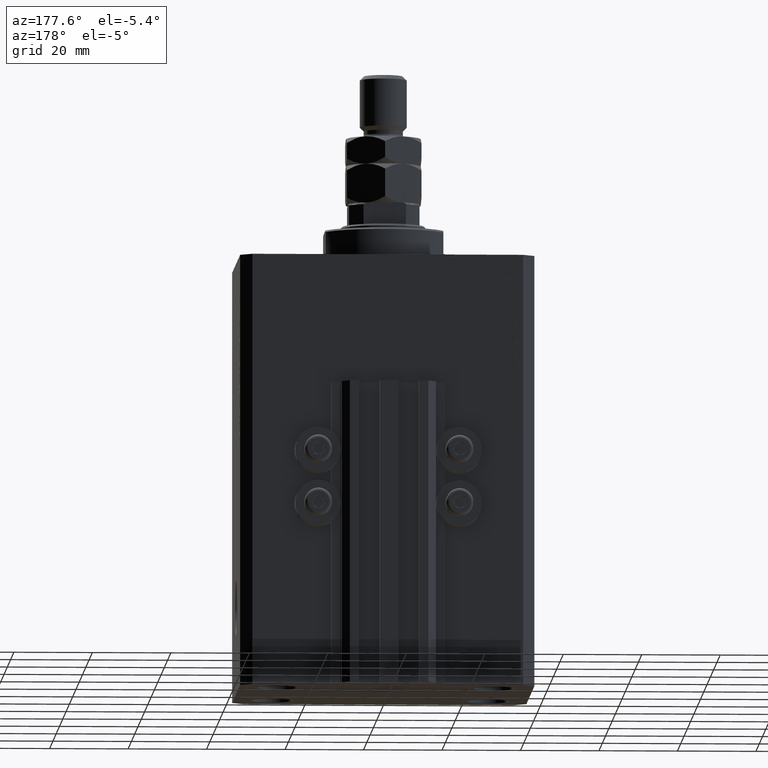
[diagram: clean part render]
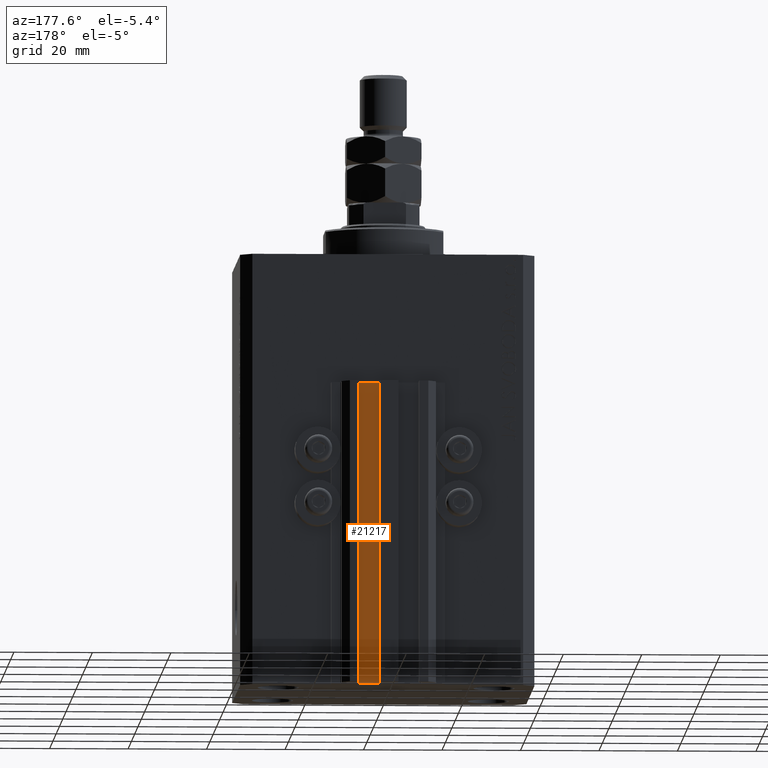
[diagram: same view with one face highlighted and labeled with its STEP entity id]
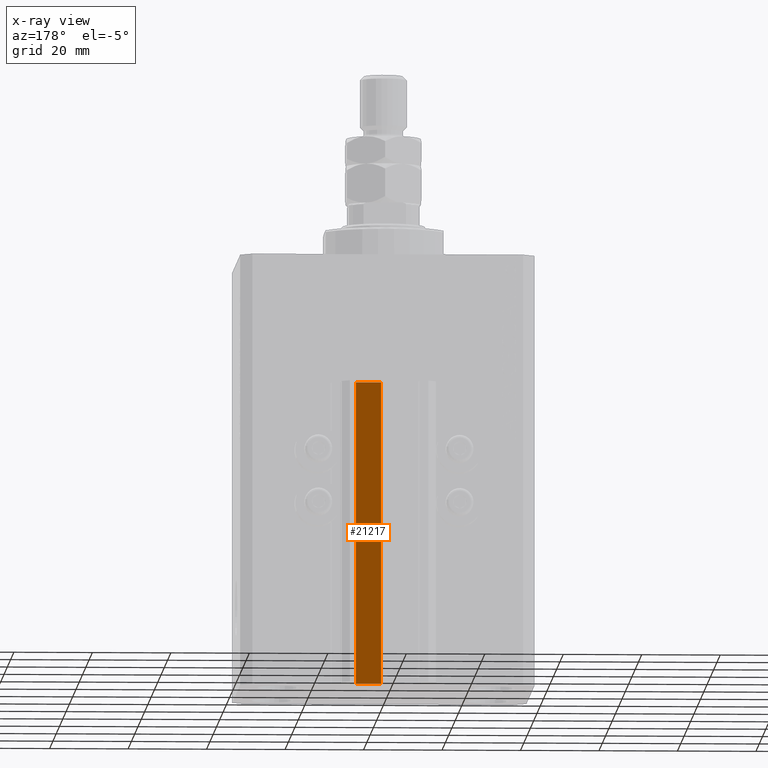
[diagram: x-ray of the same camera — body ghosted, the highlighted face saturated]
A machine part, auxiliary view. The second image highlights one B-rep face of the part: STEP entity #21217.
The next image is the same camera in x-ray: the body ghosted, the highlighted face saturated — about 0% of this face is hidden behind the body in this view.
In plain terms, the highlighted planar face has unit normal (-0, 1, 0).
Its self-contained STEP definition (entity closure, byte-faithful):
#929 = VERTEX_POINT ( 'NONE', #20552 ) ;
#1836 = CARTESIAN_POINT ( 'NONE',  ( 8.199999999999999289, 29.50000000000000711, -110.0000000000000000 ) ) ;
#2910 = VECTOR ( 'NONE', #41764, 1000.000000000000000 ) ;
#4816 = DIRECTION ( 'NONE',  ( 0.000000000000000000, 0.000000000000000000, 1.000000000000000000 ) ) ;
#4984 = CARTESIAN_POINT ( 'NONE',  ( 8.199999999999999289, 29.50000000000000711, -110.0000000000000000 ) ) ;
#5584 = ORIENTED_EDGE ( 'NONE', *, *, #41711, .T. ) ;
#7322 = DIRECTION ( 'NONE',  ( -1.084202172485504828E-15, 1.000000000000000000, 0.000000000000000000 ) ) ;
#7927 = CARTESIAN_POINT ( 'NONE',  ( 1.800000000000000933, 29.50000000000000000, -110.0000000000000000 ) ) ;
#8514 = LINE ( 'NONE', #1836, #18282 ) ;
#10914 = DIRECTION ( 'NONE',  ( 0.000000000000000000, 0.000000000000000000, 1.000000000000000000 ) ) ;
#15303 = CARTESIAN_POINT ( 'NONE',  ( 8.199999999999999289, 29.50000000000000711, -33.00000000000000000 ) ) ;
#16011 = AXIS2_PLACEMENT_3D ( 'NONE', #41108, #7322, #30023 ) ;
#18271 = DIRECTION ( 'NONE',  ( -1.000000000000000000, -1.084202172485504828E-15, 0.000000000000000000 ) ) ;
#18282 = VECTOR ( 'NONE', #4816, 1000.000000000000000 ) ;
#18488 = EDGE_LOOP ( 'NONE', ( #45852, #35263, #47165, #5584 ) ) ;
#20491 = VERTEX_POINT ( 'NONE', #24225 ) ;
#20552 = CARTESIAN_POINT ( 'NONE',  ( 8.199999999999999289, 29.50000000000000711, -33.00000000000000000 ) ) ;
#21217 = ADVANCED_FACE ( 'NONE', ( #33474 ), #26078, .T. ) ;
#21548 = CARTESIAN_POINT ( 'NONE',  ( 1.800000000000000933, 29.50000000000000000, -33.00000000000000000 ) ) ;
#22499 = LINE ( 'NONE', #7927, #44155 ) ;
#22876 = VECTOR ( 'NONE', #18271, 1000.000000000000000 ) ;
#24225 = CARTESIAN_POINT ( 'NONE',  ( 1.800000000000000933, 29.50000000000000000, -110.0000000000000000 ) ) ;
#26078 = PLANE ( 'NONE',  #16011 ) ;
#28979 = EDGE_CURVE ( 'NONE', #36018, #20491, #35071, .T. ) ;
#30023 = DIRECTION ( 'NONE',  ( -1.000000000000000000, -1.084202172485504828E-15, 0.000000000000000000 ) ) ;
#30899 = CARTESIAN_POINT ( 'NONE',  ( 8.199999999999999289, 29.50000000000000711, -110.0000000000000000 ) ) ;
#33474 = FACE_OUTER_BOUND ( 'NONE', #18488, .T. ) ;
#35071 = LINE ( 'NONE', #4984, #2910 ) ;
#35263 = ORIENTED_EDGE ( 'NONE', *, *, #46146, .F. ) ;
#35949 = VERTEX_POINT ( 'NONE', #21548 ) ;
#36018 = VERTEX_POINT ( 'NONE', #30899 ) ;
#41108 = CARTESIAN_POINT ( 'NONE',  ( 8.199999999999999289, 29.50000000000000711, -110.0000000000000000 ) ) ;
#41711 = EDGE_CURVE ( 'NONE', #20491, #35949, #22499, .T. ) ;
#41764 = DIRECTION ( 'NONE',  ( -1.000000000000000000, -1.084202172485504828E-15, 0.000000000000000000 ) ) ;
#42002 = EDGE_CURVE ( 'NONE', #929, #35949, #44899, .T. ) ;
#44155 = VECTOR ( 'NONE', #10914, 1000.000000000000000 ) ;
#44899 = LINE ( 'NONE', #15303, #22876 ) ;
#45852 = ORIENTED_EDGE ( 'NONE', *, *, #42002, .F. ) ;
#46146 = EDGE_CURVE ( 'NONE', #36018, #929, #8514, .T. ) ;
#47165 = ORIENTED_EDGE ( 'NONE', *, *, #28979, .T. ) ;